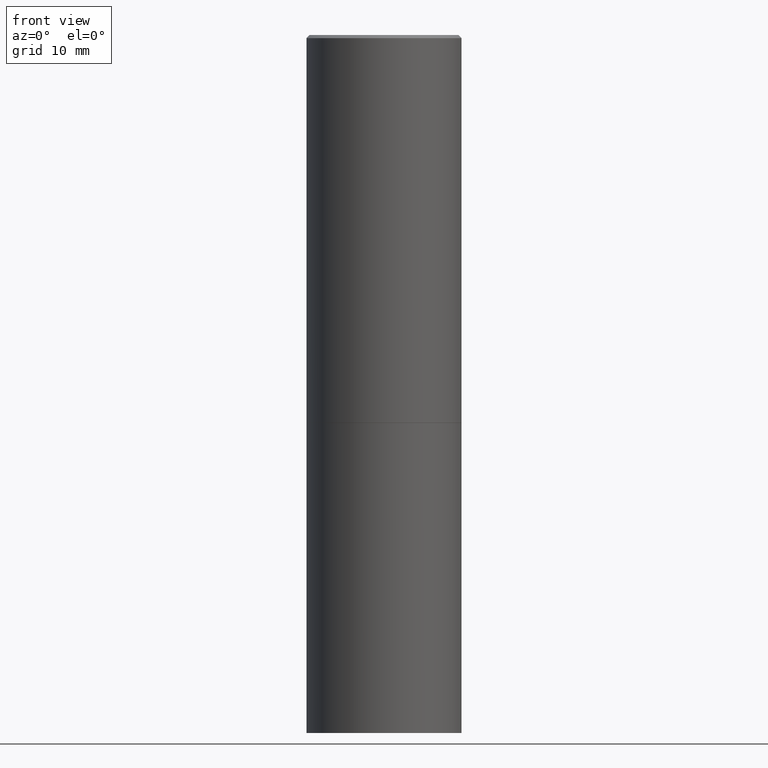
[diagram: clean part render]
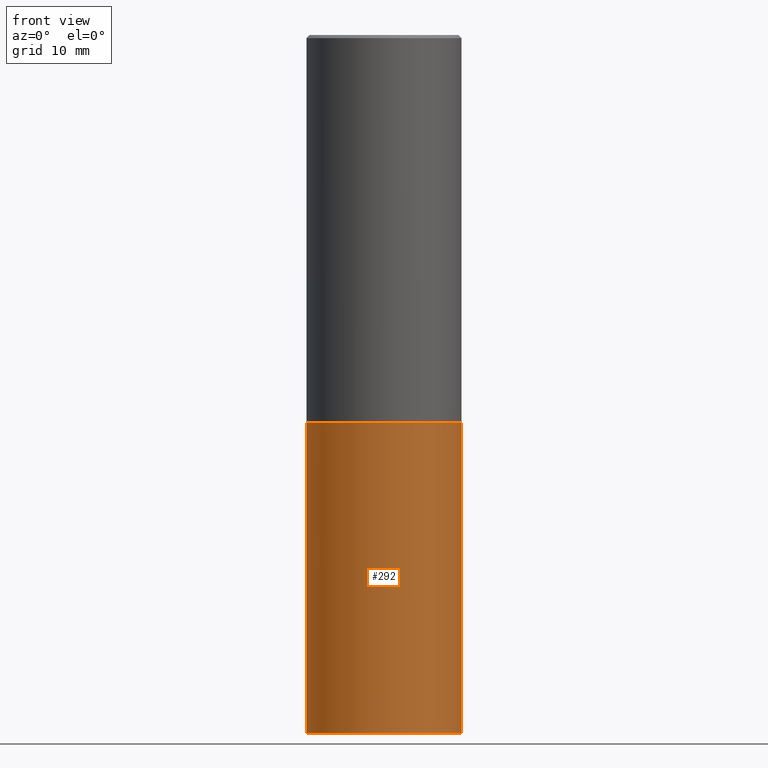
[diagram: same view with one face highlighted and labeled with its STEP entity id]
A machine part, front view. The second image highlights one B-rep face of the part: STEP entity #292.
In plain terms, the highlighted cylindrical surface (partial cylindrical patch) has radius 12.7 mm, axis along (-0, 0, 1).
Its self-contained STEP definition (entity closure, byte-faithful):
#16 = VERTEX_POINT ( 'NONE', #142 ) ;
#25 = CIRCLE ( 'NONE', #257, 0.5000000000000000000 ) ;
#44 = AXIS2_PLACEMENT_3D ( 'NONE', #61, #206, #325 ) ;
#48 = EDGE_CURVE ( 'NONE', #238, #52, #148, .T. ) ;
#49 = LINE ( 'NONE', #228, #154 ) ;
#52 = VERTEX_POINT ( 'NONE', #244 ) ;
#59 = VECTOR ( 'NONE', #174, 39.37007874015748143 ) ;
#61 = CARTESIAN_POINT ( 'NONE',  ( 6.113672015462842613E-29, -8.728703347107864943E-15, -2.500000000000000000 ) ) ;
#69 = CARTESIAN_POINT ( 'NONE',  ( 1.100460962783311469E-28, -1.571166602479415690E-14, -4.500000000000000000 ) ) ;
#79 = AXIS2_PLACEMENT_3D ( 'NONE', #88, #197, #326 ) ;
#88 = CARTESIAN_POINT ( 'NONE',  ( 0.000000000000000000, 0.000000000000000000, 0.000000000000000000 ) ) ;
#142 = CARTESIAN_POINT ( 'NONE',  ( 0.5000000000000000000, -1.222018468595099830E-14, -2.500000000000000000 ) ) ;
#148 = LINE ( 'NONE', #216, #59 ) ;
#150 = CARTESIAN_POINT ( 'NONE',  ( -0.5000000000000000000, -8.667471007150509990E-15, -4.500000000000000000 ) ) ;
#154 = VECTOR ( 'NONE', #321, 39.37007874015748143 ) ;
#155 = EDGE_CURVE ( 'NONE', #210, #16, #49, .T. ) ;
#173 = DIRECTION ( 'NONE',  ( -2.445468806185136597E-29, 3.491481338843145583E-15, 1.000000000000000000 ) ) ;
#174 = DIRECTION ( 'NONE',  ( -2.445468806185136877E-29, 3.491481338843145188E-15, 1.000000000000000000 ) ) ;
#176 = EDGE_CURVE ( 'NONE', #52, #16, #215, .T. ) ;
#184 = ORIENTED_EDGE ( 'NONE', *, *, #155, .T. ) ;
#197 = DIRECTION ( 'NONE',  ( -2.445468806185136597E-29, 3.491481338843145583E-15, 1.000000000000000000 ) ) ;
#205 = EDGE_LOOP ( 'NONE', ( #264, #302, #184, #270 ) ) ;
#206 = DIRECTION ( 'NONE',  ( -2.445468806185136597E-29, 3.491481338843145583E-15, 1.000000000000000000 ) ) ;
#210 = VERTEX_POINT ( 'NONE', #246 ) ;
#215 = CIRCLE ( 'NONE', #44, 0.5000000000000000000 ) ;
#216 = CARTESIAN_POINT ( 'NONE',  ( -0.5000000000000000000, 3.552713678800500929E-15, -2.459467545127452891E-29 ) ) ;
#221 = CYLINDRICAL_SURFACE ( 'NONE', #79, 0.5000000000000000000 ) ;
#228 = CARTESIAN_POINT ( 'NONE',  ( 0.5000000000000000000, -3.491481338843133355E-15, 2.438088387897967896E-29 ) ) ;
#238 = VERTEX_POINT ( 'NONE', #150 ) ;
#244 = CARTESIAN_POINT ( 'NONE',  ( -0.5000000000000000000, -8.667471007150509990E-15, -2.500000000000000000 ) ) ;
#246 = CARTESIAN_POINT ( 'NONE',  ( 0.5000000000000000000, -1.920314736363729025E-14, -4.500000000000000000 ) ) ;
#257 = AXIS2_PLACEMENT_3D ( 'NONE', #69, #173, #283 ) ;
#261 = FACE_OUTER_BOUND ( 'NONE', #205, .T. ) ;
#264 = ORIENTED_EDGE ( 'NONE', *, *, #48, .F. ) ;
#270 = ORIENTED_EDGE ( 'NONE', *, *, #176, .F. ) ;
#283 = DIRECTION ( 'NONE',  ( 1.000000000000000000, -6.982962677686266711E-15, 0.000000000000000000 ) ) ;
#292 = ADVANCED_FACE ( 'NONE', ( #261 ), #221, .T. ) ;
#302 = ORIENTED_EDGE ( 'NONE', *, *, #363, .T. ) ;
#321 = DIRECTION ( 'NONE',  ( -2.445468806185136877E-29, 3.491481338843145188E-15, 1.000000000000000000 ) ) ;
#325 = DIRECTION ( 'NONE',  ( 1.000000000000000000, -6.982962677686269077E-15, 0.000000000000000000 ) ) ;
#326 = DIRECTION ( 'NONE',  ( 1.000000000000000000, -6.982962677686266711E-15, 4.876176775795935793E-29 ) ) ;
#363 = EDGE_CURVE ( 'NONE', #238, #210, #25, .T. ) ;